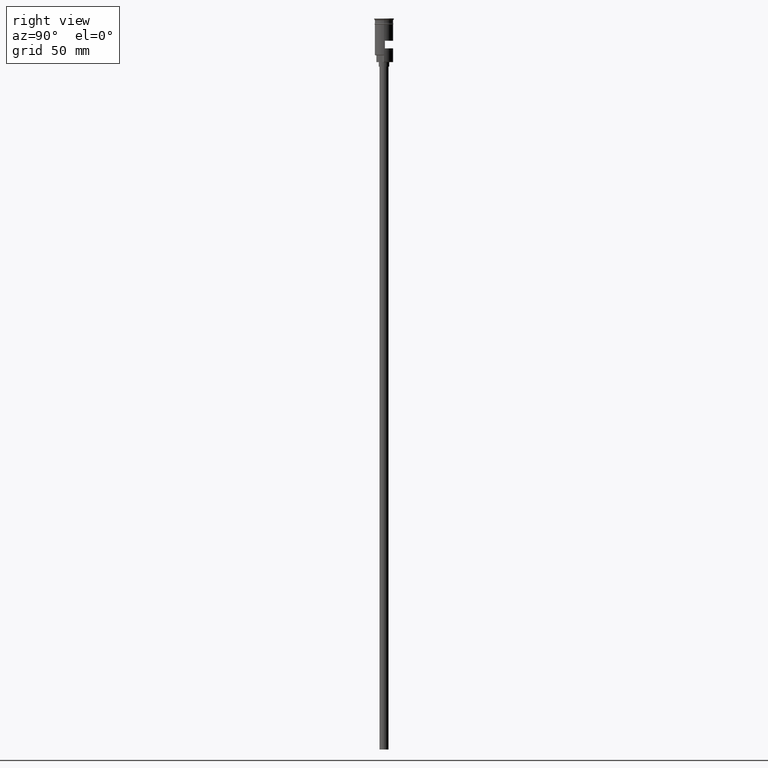
[diagram: clean part render]
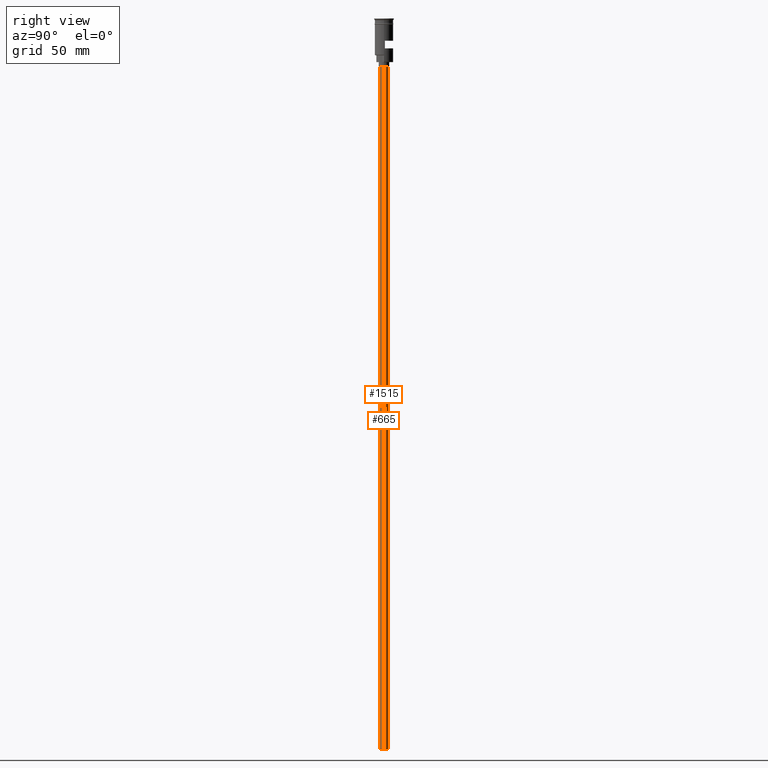
[diagram: same view with one multi-face feature highlighted, each face labeled with its STEP entity id]
A machine part, right view. The highlighted faces form ONE feature: a constant-radius fillet chain: 2 tangent blend faces with common blend radius 3 mm. The faces share edges in the B-rep.
Their STEP definitions:
[1] entity #665 (Cylinder):
#26 = CARTESIAN_POINT ( 'NONE',  ( 3.000000000000000444, 0.000000000000000000, -478.5000000000000568 ) ) ;
#54 = EDGE_CURVE ( 'NONE', #703, #1393, #326, .T. ) ;
#68 = DIRECTION ( 'NONE',  ( -1.000000000000000000, 0.000000000000000000, 0.000000000000000000 ) ) ;
#116 = CARTESIAN_POINT ( 'NONE',  ( 3.000000000000000444, 0.000000000000000000, -31.50000000000000000 ) ) ;
#123 = VECTOR ( 'NONE', #1057, 1000.000000000000000 ) ;
#189 = CARTESIAN_POINT ( 'NONE',  ( 3.000000000000000444, 0.000000000000000000, -478.5000000000000568 ) ) ;
#196 = CARTESIAN_POINT ( 'NONE',  ( -3.000000000000000444, 3.673940397442060361E-16, -478.5000000000000568 ) ) ;
#209 = DIRECTION ( 'NONE',  ( 1.000000000000000000, 0.000000000000000000, 0.000000000000000000 ) ) ;
#237 = EDGE_CURVE ( 'NONE', #703, #906, #1317, .T. ) ;
#326 = LINE ( 'NONE', #196, #1261 ) ;
#401 = ORIENTED_EDGE ( 'NONE', *, *, #54, .T. ) ;
#457 = FACE_OUTER_BOUND ( 'NONE', #572, .T. ) ;
#572 = EDGE_LOOP ( 'NONE', ( #1358, #401, #784, #1453 ) ) ;
#643 = AXIS2_PLACEMENT_3D ( 'NONE', #679, #1313, #1053 ) ;
#665 = ADVANCED_FACE ( 'NONE', ( #457 ), #944, .T. ) ;
#667 = DIRECTION ( 'NONE',  ( 0.000000000000000000, 0.000000000000000000, -1.000000000000000000 ) ) ;
#679 = CARTESIAN_POINT ( 'NONE',  ( 0.000000000000000000, 0.000000000000000000, -31.50000000000000000 ) ) ;
#703 = VERTEX_POINT ( 'NONE', #1377 ) ;
#778 = CARTESIAN_POINT ( 'NONE',  ( -3.000000000000000444, 3.673940397442060361E-16, -31.50000000000000000 ) ) ;
#784 = ORIENTED_EDGE ( 'NONE', *, *, #1018, .T. ) ;
#797 = VERTEX_POINT ( 'NONE', #116 ) ;
#812 = CARTESIAN_POINT ( 'NONE',  ( 0.000000000000000000, 0.000000000000000000, -478.5000000000000568 ) ) ;
#815 = DIRECTION ( 'NONE',  ( -0.000000000000000000, -0.000000000000000000, 1.000000000000000000 ) ) ;
#826 = CARTESIAN_POINT ( 'NONE',  ( 0.000000000000000000, 0.000000000000000000, -478.5000000000000568 ) ) ;
#906 = VERTEX_POINT ( 'NONE', #26 ) ;
#931 = CIRCLE ( 'NONE', #643, 3.000000000000000444 ) ;
#944 = CYLINDRICAL_SURFACE ( 'NONE', #1372, 3.000000000000000444 ) ;
#1018 = EDGE_CURVE ( 'NONE', #1393, #797, #931, .T. ) ;
#1038 = EDGE_CURVE ( 'NONE', #906, #797, #1301, .T. ) ;
#1053 = DIRECTION ( 'NONE',  ( -1.000000000000000000, 0.000000000000000000, 0.000000000000000000 ) ) ;
#1057 = DIRECTION ( 'NONE',  ( -0.000000000000000000, -0.000000000000000000, 1.000000000000000000 ) ) ;
#1261 = VECTOR ( 'NONE', #815, 1000.000000000000000 ) ;
#1301 = LINE ( 'NONE', #189, #123 ) ;
#1313 = DIRECTION ( 'NONE',  ( 0.000000000000000000, 0.000000000000000000, -1.000000000000000000 ) ) ;
#1317 = CIRCLE ( 'NONE', #1550, 3.000000000000000444 ) ;
#1322 = DIRECTION ( 'NONE',  ( -0.000000000000000000, -0.000000000000000000, 1.000000000000000000 ) ) ;
#1358 = ORIENTED_EDGE ( 'NONE', *, *, #237, .F. ) ;
#1372 = AXIS2_PLACEMENT_3D ( 'NONE', #826, #1322, #209 ) ;
#1377 = CARTESIAN_POINT ( 'NONE',  ( -3.000000000000000444, 3.673940397442060361E-16, -478.5000000000000568 ) ) ;
#1393 = VERTEX_POINT ( 'NONE', #778 ) ;
#1453 = ORIENTED_EDGE ( 'NONE', *, *, #1038, .F. ) ;
#1550 = AXIS2_PLACEMENT_3D ( 'NONE', #812, #667, #68 ) ;
[2] entity #1515 (Cylinder):
#26 = CARTESIAN_POINT ( 'NONE',  ( 3.000000000000000444, 0.000000000000000000, -478.5000000000000568 ) ) ;
#54 = EDGE_CURVE ( 'NONE', #703, #1393, #326, .T. ) ;
#74 = AXIS2_PLACEMENT_3D ( 'NONE', #1233, #1478, #113 ) ;
#113 = DIRECTION ( 'NONE',  ( 1.000000000000000000, 0.000000000000000000, 0.000000000000000000 ) ) ;
#116 = CARTESIAN_POINT ( 'NONE',  ( 3.000000000000000444, 0.000000000000000000, -31.50000000000000000 ) ) ;
#123 = VECTOR ( 'NONE', #1057, 1000.000000000000000 ) ;
#150 = AXIS2_PLACEMENT_3D ( 'NONE', #849, #1479, #632 ) ;
#189 = CARTESIAN_POINT ( 'NONE',  ( 3.000000000000000444, 0.000000000000000000, -478.5000000000000568 ) ) ;
#196 = CARTESIAN_POINT ( 'NONE',  ( -3.000000000000000444, 3.673940397442060361E-16, -478.5000000000000568 ) ) ;
#216 = ORIENTED_EDGE ( 'NONE', *, *, #416, .T. ) ;
#229 = AXIS2_PLACEMENT_3D ( 'NONE', #1488, #258, #501 ) ;
#258 = DIRECTION ( 'NONE',  ( 0.000000000000000000, 0.000000000000000000, -1.000000000000000000 ) ) ;
#326 = LINE ( 'NONE', #196, #1261 ) ;
#416 = EDGE_CURVE ( 'NONE', #797, #1393, #1216, .T. ) ;
#426 = EDGE_CURVE ( 'NONE', #906, #703, #1133, .T. ) ;
#501 = DIRECTION ( 'NONE',  ( -1.000000000000000000, 0.000000000000000000, 0.000000000000000000 ) ) ;
#554 = ORIENTED_EDGE ( 'NONE', *, *, #1038, .T. ) ;
#632 = DIRECTION ( 'NONE',  ( -1.000000000000000000, 0.000000000000000000, 0.000000000000000000 ) ) ;
#703 = VERTEX_POINT ( 'NONE', #1377 ) ;
#734 = FACE_OUTER_BOUND ( 'NONE', #758, .T. ) ;
#758 = EDGE_LOOP ( 'NONE', ( #964, #856, #554, #216 ) ) ;
#778 = CARTESIAN_POINT ( 'NONE',  ( -3.000000000000000444, 3.673940397442060361E-16, -31.50000000000000000 ) ) ;
#797 = VERTEX_POINT ( 'NONE', #116 ) ;
#815 = DIRECTION ( 'NONE',  ( -0.000000000000000000, -0.000000000000000000, 1.000000000000000000 ) ) ;
#849 = CARTESIAN_POINT ( 'NONE',  ( 0.000000000000000000, 0.000000000000000000, -478.5000000000000568 ) ) ;
#856 = ORIENTED_EDGE ( 'NONE', *, *, #426, .F. ) ;
#906 = VERTEX_POINT ( 'NONE', #26 ) ;
#964 = ORIENTED_EDGE ( 'NONE', *, *, #54, .F. ) ;
#1038 = EDGE_CURVE ( 'NONE', #906, #797, #1301, .T. ) ;
#1057 = DIRECTION ( 'NONE',  ( -0.000000000000000000, -0.000000000000000000, 1.000000000000000000 ) ) ;
#1133 = CIRCLE ( 'NONE', #150, 3.000000000000000444 ) ;
#1216 = CIRCLE ( 'NONE', #229, 3.000000000000000444 ) ;
#1233 = CARTESIAN_POINT ( 'NONE',  ( 0.000000000000000000, 0.000000000000000000, -478.5000000000000568 ) ) ;
#1261 = VECTOR ( 'NONE', #815, 1000.000000000000000 ) ;
#1301 = LINE ( 'NONE', #189, #123 ) ;
#1377 = CARTESIAN_POINT ( 'NONE',  ( -3.000000000000000444, 3.673940397442060361E-16, -478.5000000000000568 ) ) ;
#1382 = CYLINDRICAL_SURFACE ( 'NONE', #74, 3.000000000000000444 ) ;
#1393 = VERTEX_POINT ( 'NONE', #778 ) ;
#1478 = DIRECTION ( 'NONE',  ( -0.000000000000000000, -0.000000000000000000, 1.000000000000000000 ) ) ;
#1479 = DIRECTION ( 'NONE',  ( 0.000000000000000000, 0.000000000000000000, -1.000000000000000000 ) ) ;
#1488 = CARTESIAN_POINT ( 'NONE',  ( 0.000000000000000000, 0.000000000000000000, -31.50000000000000000 ) ) ;
#1515 = ADVANCED_FACE ( 'NONE', ( #734 ), #1382, .T. ) ;